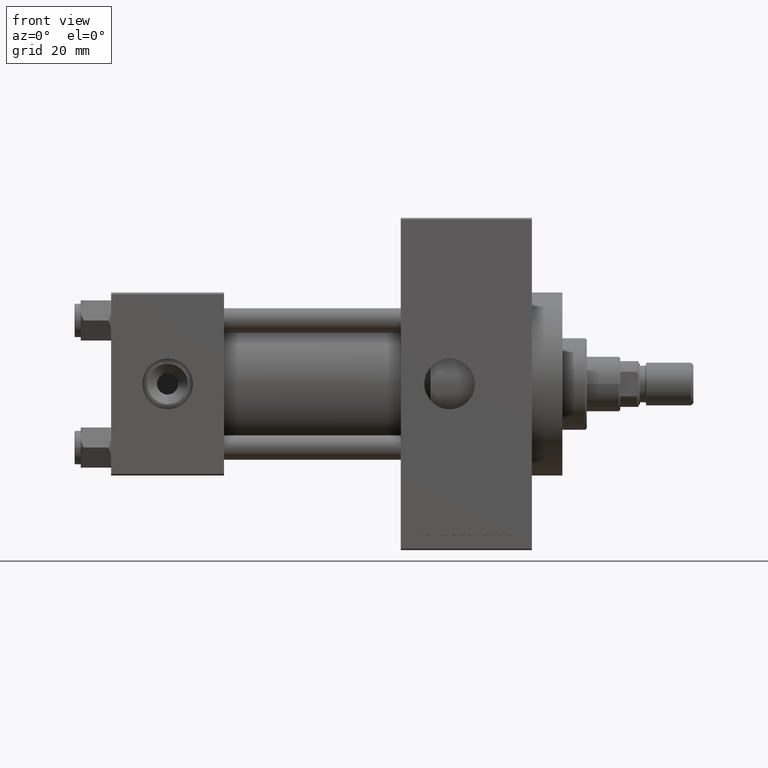
[diagram: clean part render]
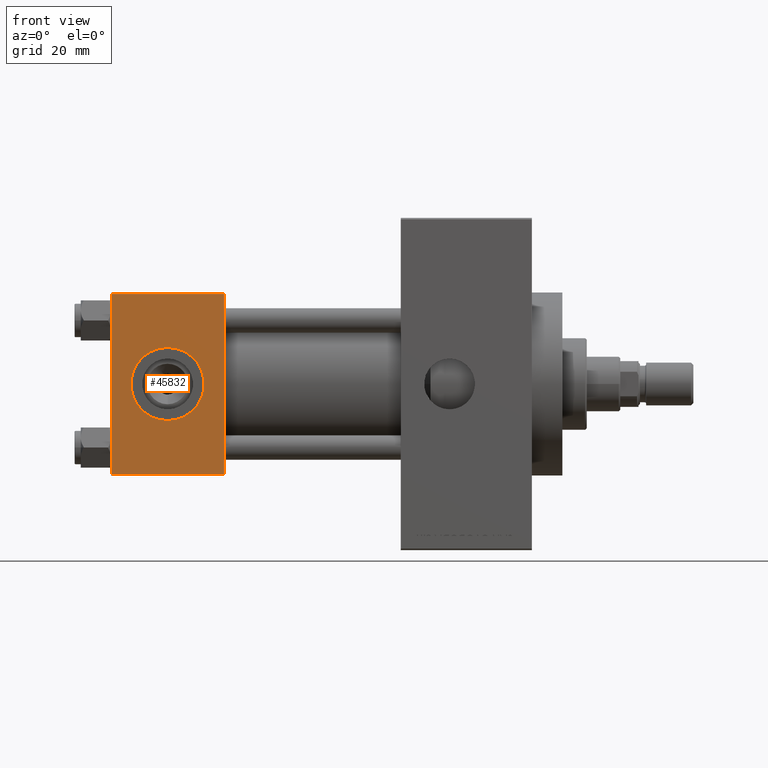
[diagram: same view with one face highlighted and labeled with its STEP entity id]
A machine part, front view. The second image highlights one B-rep face of the part: STEP entity #45832.
In plain terms, the highlighted planar face has unit normal (0, 1, 0).
Its self-contained STEP definition (entity closure, byte-faithful):
#290 = CARTESIAN_POINT ( 'NONE',  ( 37.00000000000000000, -30.00000000000000000, 29.99999999999999289 ) ) ;
#313 = VERTEX_POINT ( 'NONE', #827 ) ;
#827 = CARTESIAN_POINT ( 'NONE',  ( 37.00000000000000000, -30.00000000000000000, -29.50000000000001776 ) ) ;
#1036 = DIRECTION ( 'NONE',  ( 0.000000000000000000, 0.000000000000000000, -1.000000000000000000 ) ) ;
#1219 = CARTESIAN_POINT ( 'NONE',  ( 18.50000000000000000, -30.00000000000000000, 12.00000000000000178 ) ) ;
#1454 = DIRECTION ( 'NONE',  ( 0.000000000000000000, 0.000000000000000000, -1.000000000000000000 ) ) ;
#1593 = CIRCLE ( 'NONE', #29732, 12.00000000000000178 ) ;
#2885 = CIRCLE ( 'NONE', #6913, 12.00000000000000178 ) ;
#3314 = CARTESIAN_POINT ( 'NONE',  ( 0.000000000000000000, -30.00000000000000000, 29.49999999999999289 ) ) ;
#3573 = ORIENTED_EDGE ( 'NONE', *, *, #10482, .F. ) ;
#4340 = CARTESIAN_POINT ( 'NONE',  ( 37.00000000000000000, -30.00000000000000000, -29.50000000000001776 ) ) ;
#4508 = DIRECTION ( 'NONE',  ( 0.000000000000000000, 0.000000000000000000, -1.000000000000000000 ) ) ;
#4827 = LINE ( 'NONE', #4340, #16644 ) ;
#6349 = VERTEX_POINT ( 'NONE', #25391 ) ;
#6483 = AXIS2_PLACEMENT_3D ( 'NONE', #45518, #30182, #19326 ) ;
#6913 = AXIS2_PLACEMENT_3D ( 'NONE', #23865, #31182, #4508 ) ;
#8726 = EDGE_LOOP ( 'NONE', ( #39696, #15075, #38070, #17430 ) ) ;
#10482 = EDGE_CURVE ( 'NONE', #37576, #6349, #1593, .T. ) ;
#12280 = CARTESIAN_POINT ( 'NONE',  ( 0.000000000000000000, -30.00000000000000000, 29.99999999999999289 ) ) ;
#12559 = VECTOR ( 'NONE', #1036, 1000.000000000000000 ) ;
#13290 = DIRECTION ( 'NONE',  ( 0.000000000000000000, 0.000000000000000000, -1.000000000000000000 ) ) ;
#15075 = ORIENTED_EDGE ( 'NONE', *, *, #32296, .T. ) ;
#16644 = VECTOR ( 'NONE', #23696, 1000.000000000000000 ) ;
#17219 = LINE ( 'NONE', #25520, #47672 ) ;
#17430 = ORIENTED_EDGE ( 'NONE', *, *, #21391, .T. ) ;
#19326 = DIRECTION ( 'NONE',  ( 0.000000000000000000, -0.000000000000000000, 1.000000000000000000 ) ) ;
#21391 = EDGE_CURVE ( 'NONE', #26801, #22685, #17219, .T. ) ;
#22685 = VERTEX_POINT ( 'NONE', #3314 ) ;
#22876 = EDGE_LOOP ( 'NONE', ( #28057, #3573 ) ) ;
#23696 = DIRECTION ( 'NONE',  ( 1.000000000000000000, 0.000000000000000000, 0.000000000000000000 ) ) ;
#23865 = CARTESIAN_POINT ( 'NONE',  ( 18.50000000000000000, -30.00000000000000000, 0.000000000000000000 ) ) ;
#25391 = CARTESIAN_POINT ( 'NONE',  ( 18.50000000000000000, -30.00000000000000000, -12.00000000000000178 ) ) ;
#25520 = CARTESIAN_POINT ( 'NONE',  ( 37.00000000000000000, -30.00000000000000000, 29.49999999999999289 ) ) ;
#26404 = VECTOR ( 'NONE', #1454, 1000.000000000000000 ) ;
#26801 = VERTEX_POINT ( 'NONE', #49312 ) ;
#27219 = LINE ( 'NONE', #290, #12559 ) ;
#27746 = EDGE_CURVE ( 'NONE', #6349, #37576, #2885, .T. ) ;
#28057 = ORIENTED_EDGE ( 'NONE', *, *, #27746, .F. ) ;
#29399 = EDGE_CURVE ( 'NONE', #26801, #313, #27219, .T. ) ;
#29732 = AXIS2_PLACEMENT_3D ( 'NONE', #47760, #35936, #13290 ) ;
#30182 = DIRECTION ( 'NONE',  ( -0.000000000000000000, 1.000000000000000000, 0.000000000000000000 ) ) ;
#31182 = DIRECTION ( 'NONE',  ( 0.000000000000000000, -1.000000000000000000, -8.673617379884036705E-17 ) ) ;
#32296 = EDGE_CURVE ( 'NONE', #37721, #313, #4827, .T. ) ;
#34435 = FACE_BOUND ( 'NONE', #22876, .T. ) ;
#35936 = DIRECTION ( 'NONE',  ( 0.000000000000000000, -1.000000000000000000, -8.673617379884036705E-17 ) ) ;
#37576 = VERTEX_POINT ( 'NONE', #1219 ) ;
#37721 = VERTEX_POINT ( 'NONE', #39220 ) ;
#38070 = ORIENTED_EDGE ( 'NONE', *, *, #29399, .F. ) ;
#39220 = CARTESIAN_POINT ( 'NONE',  ( 0.000000000000000000, -30.00000000000000000, -29.50000000000001776 ) ) ;
#39696 = ORIENTED_EDGE ( 'NONE', *, *, #40412, .T. ) ;
#39716 = LINE ( 'NONE', #12280, #26404 ) ;
#40412 = EDGE_CURVE ( 'NONE', #22685, #37721, #39716, .T. ) ;
#40873 = DIRECTION ( 'NONE',  ( -1.000000000000000000, 0.000000000000000000, 0.000000000000000000 ) ) ;
#45518 = CARTESIAN_POINT ( 'NONE',  ( 37.00000000000000000, -30.00000000000000000, 29.99999999999999289 ) ) ;
#45832 = ADVANCED_FACE ( 'NONE', ( #34435, #46007 ), #49766, .F. ) ;
#46007 = FACE_OUTER_BOUND ( 'NONE', #8726, .T. ) ;
#47672 = VECTOR ( 'NONE', #40873, 1000.000000000000000 ) ;
#47760 = CARTESIAN_POINT ( 'NONE',  ( 18.50000000000000000, -30.00000000000000000, 0.000000000000000000 ) ) ;
#49312 = CARTESIAN_POINT ( 'NONE',  ( 37.00000000000000000, -30.00000000000000000, 29.49999999999999289 ) ) ;
#49766 = PLANE ( 'NONE',  #6483 ) ;